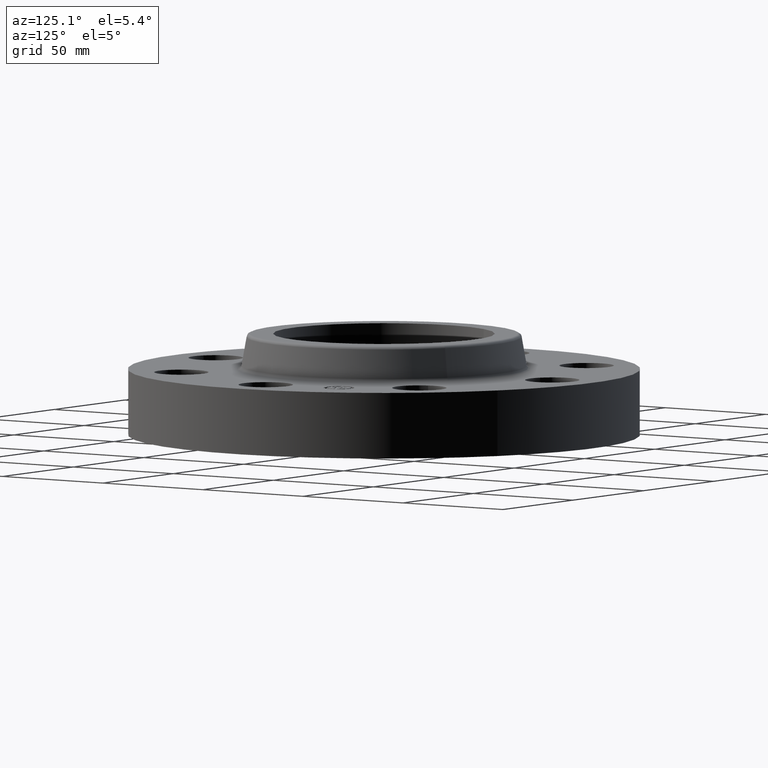
[diagram: clean part render]
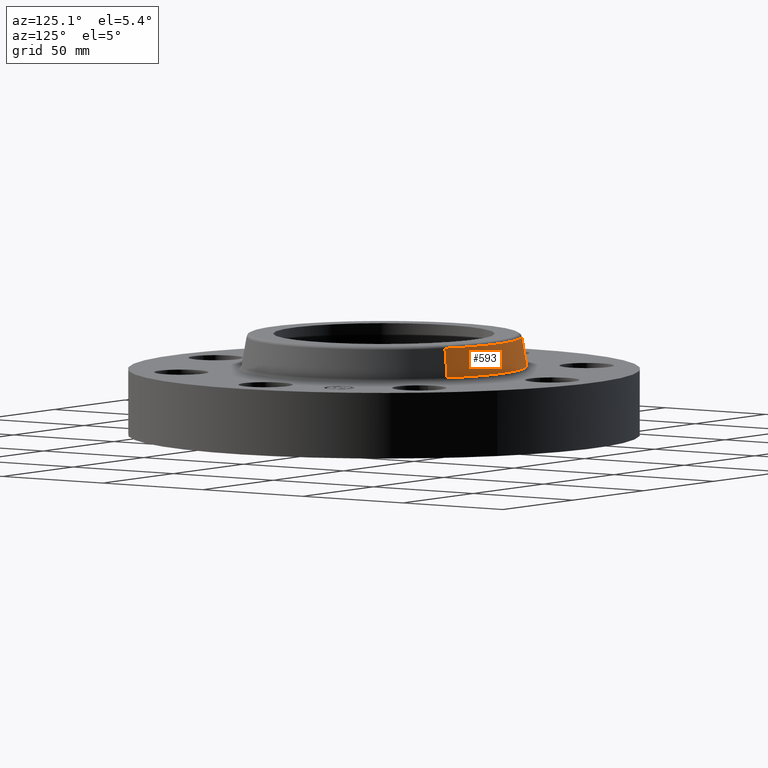
[diagram: same view with one face highlighted and labeled with its STEP entity id]
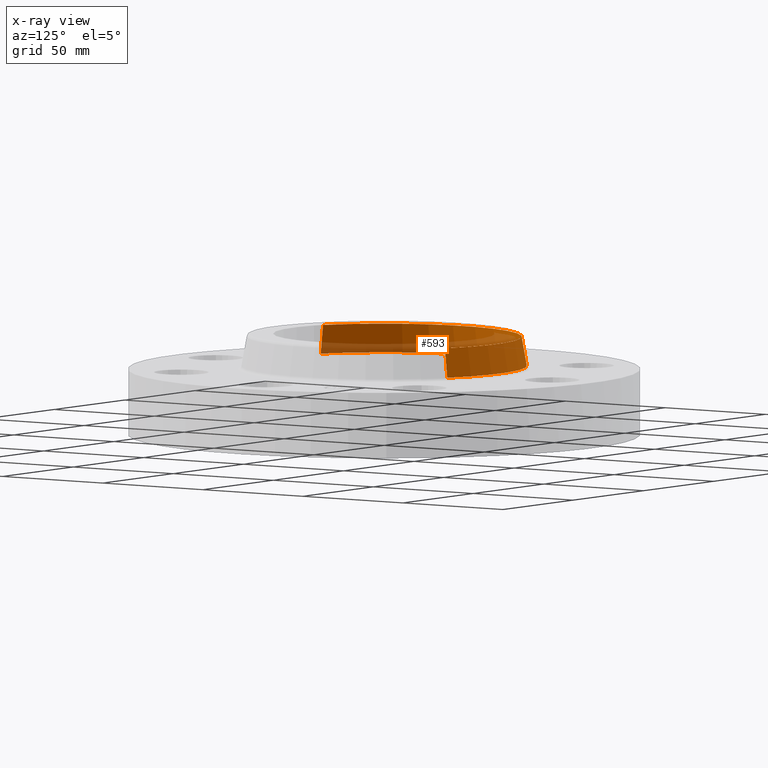
[diagram: x-ray of the same camera — body ghosted, the highlighted face saturated]
A machine part, auxiliary view. The second image highlights one B-rep face of the part: STEP entity #593.
The next image is the same camera in x-ray: the body ghosted, the highlighted face saturated — about 23% of this face is hidden behind the body in this view.
In plain terms, the highlighted conical surface has half-angle 10 deg.
Its self-contained STEP definition (entity closure, byte-faithful):
#348=AXIS2_PLACEMENT_3D('Circle Axis2P3D',#346,#347,$) ;
#580=AXIS2_PLACEMENT_3D('Cone Axis2P3D',#577,#578,#579) ;
#584=AXIS2_PLACEMENT_3D('Circle Axis2P3D',#582,#583,$) ;
#312=CARTESIAN_POINT('Vertex',(1.06347904098,1.94668532682,1.58041889067)) ;
#314=CARTESIAN_POINT('Vertex',(-1.06347904098,-1.94668532682,1.58041889067)) ;
#346=CARTESIAN_POINT('Axis2P3D Location',(0.,0.,1.58041889067)) ;
#548=CARTESIAN_POINT('Vertex',(1.10328162249,2.01954346356,1.10958110934)) ;
#550=CARTESIAN_POINT('Vertex',(-1.10328162249,-2.01954346356,1.10958110934)) ;
#553=CARTESIAN_POINT('Line Origine',(1.08338033174,1.98311439519,1.345)) ;
#558=CARTESIAN_POINT('Line Origine',(-1.08338033174,-1.98311439519,1.345)) ;
#577=CARTESIAN_POINT('Axis2P3D Location',(0.,0.,1.58041889067)) ;
#582=CARTESIAN_POINT('Axis2P3D Location',(0.,0.,1.10958110934)) ;
#347=DIRECTION('Axis2P3D Direction',(-0.,0.,-0.0393700787402)) ;
#554=DIRECTION('Vector Direction',(0.00327761303565,0.00599963041827,-0.03877195878)) ;
#559=DIRECTION('Vector Direction',(-0.00327761303565,-0.00599963041827,-0.03877195878)) ;
#578=DIRECTION('Axis2P3D Direction',(0.,0.,-0.0393700787402)) ;
#579=DIRECTION('Axis2P3D XDirection',(-0.0188750212049,-0.0345504945626,0.)) ;
#583=DIRECTION('Axis2P3D Direction',(-0.,0.,-0.0393700787402)) ;
#555=VECTOR('Line Direction',#554,0.0393700787402) ;
#560=VECTOR('Line Direction',#559,0.0393700787402) ;
#588=ORIENTED_EDGE('',*,*,#586,.F.) ;
#589=ORIENTED_EDGE('',*,*,#562,.T.) ;
#590=ORIENTED_EDGE('',*,*,#350,.T.) ;
#591=ORIENTED_EDGE('',*,*,#557,.F.) ;
#593=ADVANCED_FACE('PartBody',(#592),#581,.T.) ;
#349=CIRCLE('generated circle',#348,2.21823610831) ;
#585=CIRCLE('generated circle',#584,2.30125751271) ;
#581=CONICAL_SURFACE('Cone',#580,2.21823610832,0.174532925199) ;
#350=EDGE_CURVE('',#315,#313,#349,.T.) ;
#557=EDGE_CURVE('',#549,#313,#556,.F.) ;
#562=EDGE_CURVE('',#551,#315,#561,.F.) ;
#586=EDGE_CURVE('',#551,#549,#585,.T.) ;
#587=EDGE_LOOP('',(#588,#589,#590,#591)) ;
#592=FACE_OUTER_BOUND('',#587,.T.) ;
#556=LINE('Line',#553,#555) ;
#561=LINE('Line',#558,#560) ;
#313=VERTEX_POINT('',#312) ;
#315=VERTEX_POINT('',#314) ;
#549=VERTEX_POINT('',#548) ;
#551=VERTEX_POINT('',#550) ;